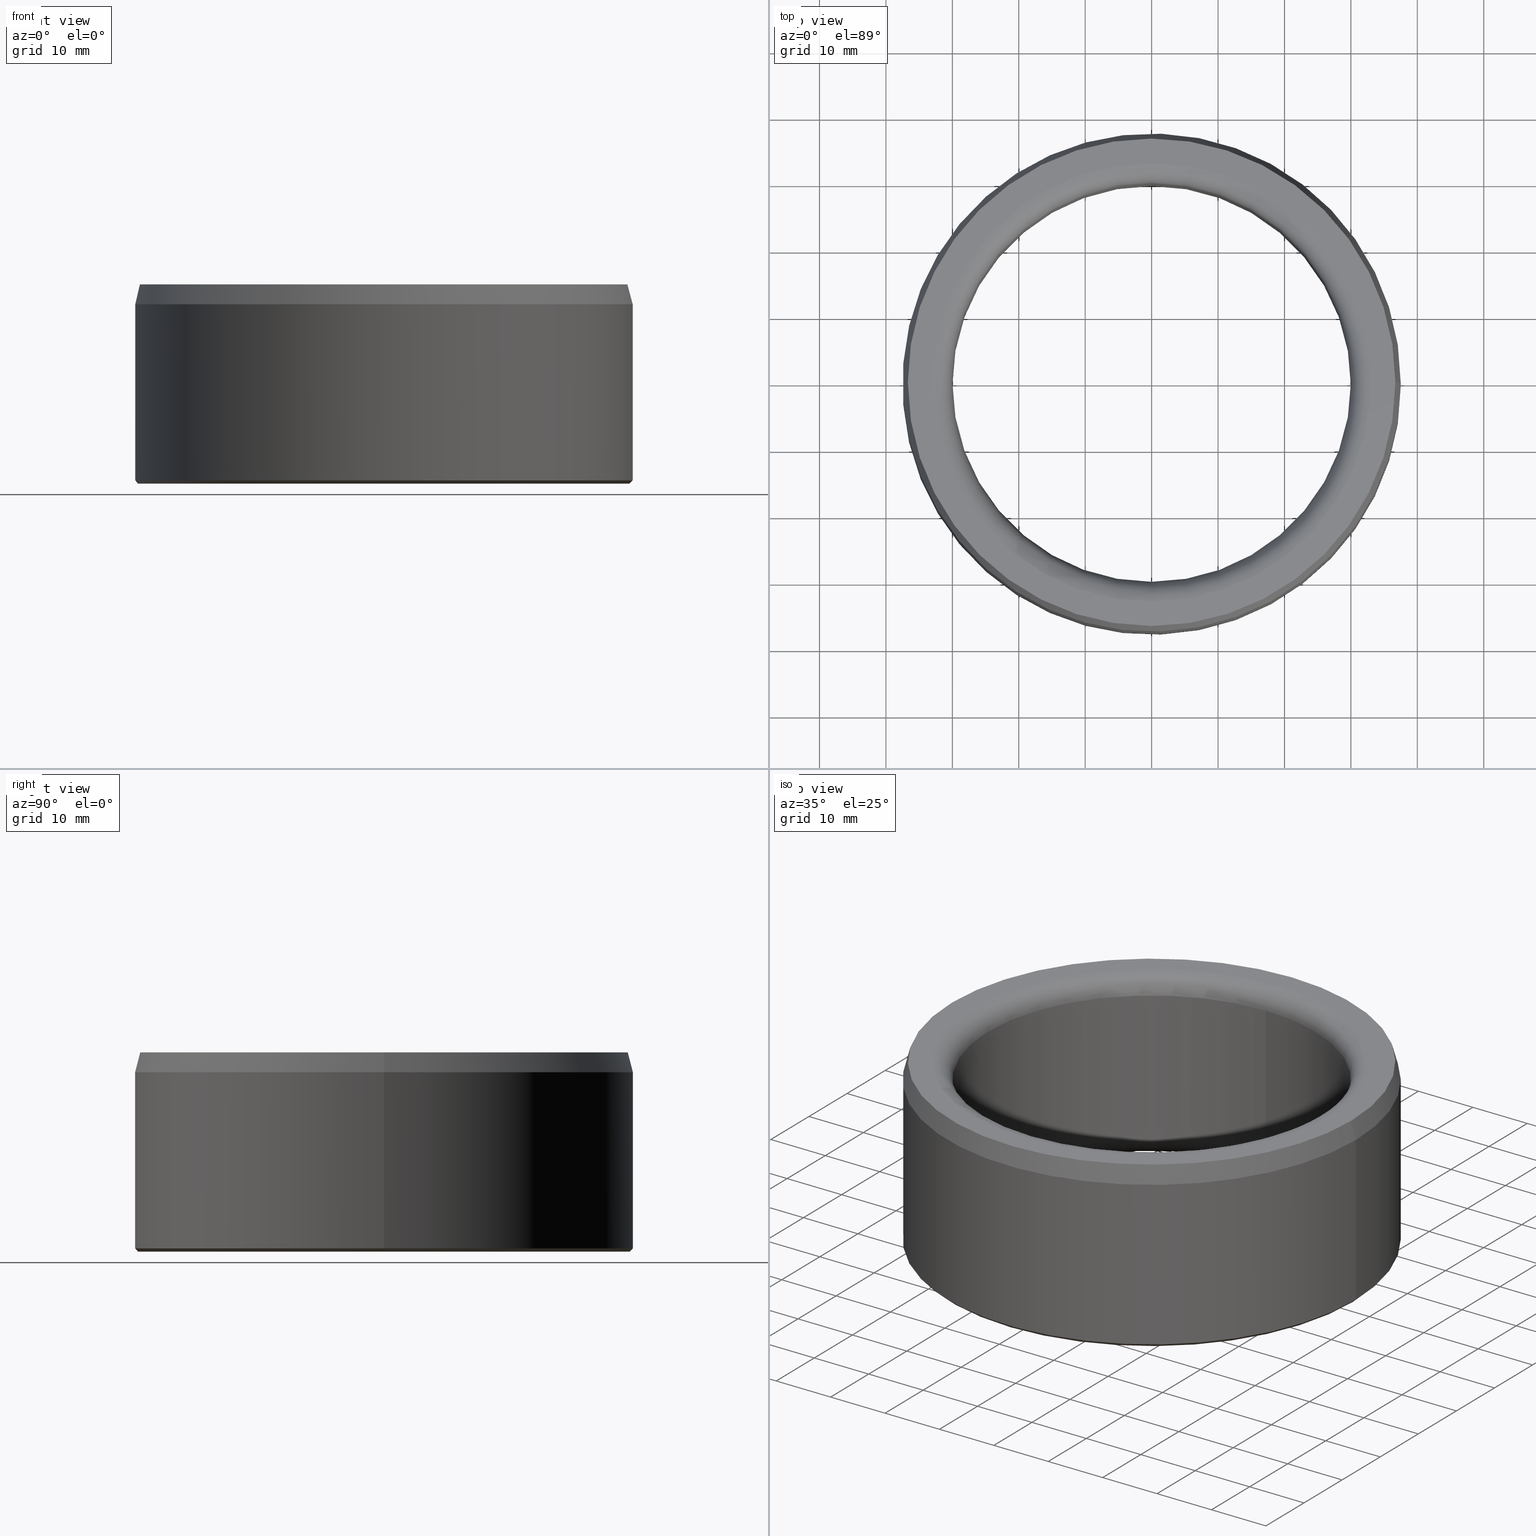
[diagram: canonical four-view strip — front | top / right | iso, engineering-drawing reading convention]
A machine part, canonical four-view strip (front | top / right | iso — engineering-drawing reading convention). The complete STEP part file that produces these views, byte-faithful:
ISO-10303-21;
HEADER;
FILE_DESCRIPTION(('STEP AP203'),'1');
FILE_NAME('620-060x75x30.stp','2018-05-21T09:26:52',(' '),(' '),'Spatial InterOp 3D',' ',' ');
FILE_SCHEMA(('CONFIG_CONTROL_DESIGN'));
ENDSEC;
DATA;
#1=DESIGN_CONTEXT('',#51,'design');
#2=APPLICATION_PROTOCOL_DEFINITION('INTERNATIONAL STANDARD','config_control_design',1994,#51);
#3=PRODUCT_CATEGORY_RELATIONSHIP('NONE','NONE',#52,#53);
#4=DATE_AND_TIME(#54,#55);
#5=DATE_TIME_ROLE('creation_date');
#6=DATE_TIME_ROLE('classification_date');
#7=PERSON_AND_ORGANIZATION_ROLE('creator');
#8=PERSON_AND_ORGANIZATION_ROLE('design_supplier');
#9=PERSON_AND_ORGANIZATION_ROLE('classification_officer');
#10=PERSON_AND_ORGANIZATION_ROLE('design_owner');
#11=APPROVAL_PERSON_ORGANIZATION(#56,#57,#58);
#12=APPROVAL_DATE_TIME(#4,#57);
#13=CC_DESIGN_APPROVAL(#57,(#59,#60,#61));
#14=CC_DESIGN_DATE_AND_TIME_ASSIGNMENT(#4,#5,(#61));
#15=CC_DESIGN_DATE_AND_TIME_ASSIGNMENT(#4,#6,(#59));
#16=CC_DESIGN_PERSON_AND_ORGANIZATION_ASSIGNMENT(#56,#10,(#62));
#17=CC_DESIGN_PERSON_AND_ORGANIZATION_ASSIGNMENT(#56,#7,(#61));
#18=CC_DESIGN_PERSON_AND_ORGANIZATION_ASSIGNMENT(#56,#7,(#60));
#19=CC_DESIGN_PERSON_AND_ORGANIZATION_ASSIGNMENT(#56,#8,(#60));
#20=CC_DESIGN_SECURITY_CLASSIFICATION(#59,(#60));
#21=CC_DESIGN_PERSON_AND_ORGANIZATION_ASSIGNMENT(#56,#9,(#59));
#22=SHAPE_DEFINITION_REPRESENTATION(#63,#64);
#23=DESIGN_CONTEXT('',#65,'design');
#24=APPLICATION_PROTOCOL_DEFINITION('INTERNATIONAL STANDARD','config_control_design',1994,#65);
#25=PRODUCT_CATEGORY_RELATIONSHIP('NONE','NONE',#66,#67);
#26=DATE_AND_TIME(#68,#69);
#27=DATE_TIME_ROLE('creation_date');
#28=DATE_TIME_ROLE('classification_date');
#29=PERSON_AND_ORGANIZATION_ROLE('creator');
#30=PERSON_AND_ORGANIZATION_ROLE('design_supplier');
#31=PERSON_AND_ORGANIZATION_ROLE('classification_officer');
#32=PERSON_AND_ORGANIZATION_ROLE('design_owner');
#33=APPROVAL_PERSON_ORGANIZATION(#70,#71,#72);
#34=APPROVAL_DATE_TIME(#26,#71);
#35=CC_DESIGN_APPROVAL(#71,(#73,#74,#75));
#36=CC_DESIGN_DATE_AND_TIME_ASSIGNMENT(#26,#27,(#75));
#37=CC_DESIGN_DATE_AND_TIME_ASSIGNMENT(#26,#28,(#73));
#38=CC_DESIGN_PERSON_AND_ORGANIZATION_ASSIGNMENT(#70,#32,(#76));
#39=CC_DESIGN_PERSON_AND_ORGANIZATION_ASSIGNMENT(#70,#29,(#75));
#40=CC_DESIGN_PERSON_AND_ORGANIZATION_ASSIGNMENT(#70,#29,(#74));
#41=CC_DESIGN_PERSON_AND_ORGANIZATION_ASSIGNMENT(#70,#30,(#74));
#42=CC_DESIGN_SECURITY_CLASSIFICATION(#73,(#74));
#43=CC_DESIGN_PERSON_AND_ORGANIZATION_ASSIGNMENT(#70,#31,(#73));
#44=CONTEXT_DEPENDENT_SHAPE_REPRESENTATION(#77,#78);
#45=SHAPE_DEFINITION_REPRESENTATION(#79,#80);
#46=SHAPE_REPRESENTATION_RELATIONSHIP('NONE','NONE',#80,#81);
#47= (GEOMETRIC_REPRESENTATION_CONTEXT(3)GLOBAL_UNCERTAINTY_ASSIGNED_CONTEXT((#84))GLOBAL_UNIT_ASSIGNED_CONTEXT((#86,#87,#88))REPRESENTATION_CONTEXT('NONE','WORKSPACE'));
#51=APPLICATION_CONTEXT('CONFIGURATION CONTROLLED 3D DESIGNS OF MECHANICAL PARTS AND ASSEMBLIES');
#52=PRODUCT_CATEGORY('part','NONE');
#53=PRODUCT_RELATED_PRODUCT_CATEGORY('detail',' ',(#62));
#54=CALENDAR_DATE(2018,21,4);
#55=LOCAL_TIME(11,26,52.0,#90);
#56=PERSON_AND_ORGANIZATION(#91,#92);
#57=APPROVAL(#93,'SOLID MODEL');
#58=APPROVAL_ROLE('APPROVED');
#59=SECURITY_CLASSIFICATION('','',#94);
#60=PRODUCT_DEFINITION_FORMATION_WITH_SPECIFIED_SOURCE(' ','NONE',#62,.NOT_KNOWN.);
#61=PRODUCT_DEFINITION('NONE','NONE',#60,#1);
#62=PRODUCT('','','PART--DESC',(#95));
#63=PRODUCT_DEFINITION_SHAPE('NONE','NONE',#61);
#64=SHAPE_REPRESENTATION('',(#96,#97),#98);
#65=APPLICATION_CONTEXT('CONFIGURATION CONTROLLED 3D DESIGNS OF MECHANICAL PARTS AND ASSEMBLIES');
#66=PRODUCT_CATEGORY('part','NONE');
#67=PRODUCT_RELATED_PRODUCT_CATEGORY('detail',' ',(#76));
#68=CALENDAR_DATE(2018,21,4);
#69=LOCAL_TIME(11,26,52.0,#99);
#70=PERSON_AND_ORGANIZATION(#100,#101);
#71=APPROVAL(#102,'SOLID MODEL');
#72=APPROVAL_ROLE('APPROVED');
#73=SECURITY_CLASSIFICATION('','',#103);
#74=PRODUCT_DEFINITION_FORMATION_WITH_SPECIFIED_SOURCE(' ','NONE',#76,.NOT_KNOWN.);
#75=PRODUCT_DEFINITION('620-060x75x30','620-060x75x30',#74,#23);
#76=PRODUCT('620-060x75x30','620-060x75x30','PART-620-060x75x30-DESC',(#104));
#77=(REPRESENTATION_RELATIONSHIP('','',#80,#64)REPRESENTATION_RELATIONSHIP_WITH_TRANSFORMATION(#107)SHAPE_REPRESENTATION_RELATIONSHIP());
#78=PRODUCT_DEFINITION_SHAPE('NAUO-PROD-DEF','NAUO-PROD-DEF',#109);
#79=PRODUCT_DEFINITION_SHAPE('NONE','NONE',#75);
#80=SHAPE_REPRESENTATION('620-060x75x30',(#96),#98);
#81=ADVANCED_BREP_SHAPE_REPRESENTATION('',(#110),#47);
#84=UNCERTAINTY_MEASURE_WITH_UNIT(LENGTH_MEASURE(1.0E-006),#86,'','');
#86= (CONVERSION_BASED_UNIT('METRE',#113)LENGTH_UNIT()NAMED_UNIT(#116));
#87= (NAMED_UNIT(#118)PLANE_ANGLE_UNIT()SI_UNIT($,.RADIAN.));
#88= (NAMED_UNIT(#118)SOLID_ANGLE_UNIT()SI_UNIT($,.STERADIAN.));
#90=COORDINATED_UNIVERSAL_TIME_OFFSET(1,0,.AHEAD.);
#91=PERSON('','UNSPECIFIED',$,$,$,$);
#92=ORGANIZATION('UNSPECIFIED','UNSPECIFIED','UNSPECIFIED');
#93=APPROVAL_STATUS('approved');
#94=SECURITY_CLASSIFICATION_LEVEL('unclassified');
#95=MECHANICAL_CONTEXT('',#51,'mechanical');
#96=AXIS2_PLACEMENT_3D('',#124,#125,#126);
#97=AXIS2_PLACEMENT_3D('',#127,#128,#129);
#98= (GEOMETRIC_REPRESENTATION_CONTEXT(3)GLOBAL_UNCERTAINTY_ASSIGNED_CONTEXT((#132))GLOBAL_UNIT_ASSIGNED_CONTEXT((#134,#135,#136))REPRESENTATION_CONTEXT('NONE','WORKSPACE'));
#99=COORDINATED_UNIVERSAL_TIME_OFFSET(1,0,.AHEAD.);
#100=PERSON('','UNSPECIFIED',$,$,$,$);
#101=ORGANIZATION('UNSPECIFIED','UNSPECIFIED','UNSPECIFIED');
#102=APPROVAL_STATUS('approved');
#103=SECURITY_CLASSIFICATION_LEVEL('unclassified');
#104=MECHANICAL_CONTEXT('',#65,'mechanical');
#107=ITEM_DEFINED_TRANSFORMATION('','',#96,#97);
#109=NEXT_ASSEMBLY_USAGE_OCCURRENCE('620-060x75x30','620-060x75x30','620-060x75x30',#61,#75,$);
#110=MANIFOLD_SOLID_BREP('',#138);
#113=LENGTH_MEASURE_WITH_UNIT(LENGTH_MEASURE(1.0),#139);
#116=DIMENSIONAL_EXPONENTS(1.0,0.0,0.0,0.0,0.0,0.0,0.0);
#118=DIMENSIONAL_EXPONENTS(0.0,0.0,0.0,0.0,0.0,0.0,0.0);
#124=CARTESIAN_POINT('',(0.0,0.0,0.0));
#125=DIRECTION('',(0.0,0.0,1.0));
#126=DIRECTION('',(1.0,0.0,0.0));
#127=CARTESIAN_POINT('',(0.0,0.0,0.0));
#128=DIRECTION('',(0.0,0.0,1.0));
#129=DIRECTION('',(1.0,0.0,0.0));
#132=UNCERTAINTY_MEASURE_WITH_UNIT(LENGTH_MEASURE(1.0E-006),#134,'','');
#134= (CONVERSION_BASED_UNIT('METRE',#142)LENGTH_UNIT()NAMED_UNIT(#145));
#135= (NAMED_UNIT(#147)PLANE_ANGLE_UNIT()SI_UNIT($,.RADIAN.));
#136= (NAMED_UNIT(#147)SOLID_ANGLE_UNIT()SI_UNIT($,.STERADIAN.));
#138=CLOSED_SHELL('',(#153,#154,#155,#156,#157,#158,#159,#160));
#139= (NAMED_UNIT(#116)LENGTH_UNIT()SI_UNIT($,.METRE.));
#142=LENGTH_MEASURE_WITH_UNIT(LENGTH_MEASURE(1.0),#162);
#145=DIMENSIONAL_EXPONENTS(1.0,0.0,0.0,0.0,0.0,0.0,0.0);
#147=DIMENSIONAL_EXPONENTS(0.0,0.0,0.0,0.0,0.0,0.0,0.0);
#153=ADVANCED_FACE('',(#163,#164),#165,.T.);
#154=ADVANCED_FACE('',(#166,#167),#168,.T.);
#155=ADVANCED_FACE('',(#169,#170),#171,.T.);
#156=ADVANCED_FACE('',(#172,#173),#174,.F.);
#157=ADVANCED_FACE('',(#175,#176),#177,.T.);
#158=ADVANCED_FACE('',(#178,#179),#180,.T.);
#159=ADVANCED_FACE('',(#181,#182),#183,.T.);
#160=ADVANCED_FACE('',(#184,#185),#186,.T.);
#162= (NAMED_UNIT(#145)LENGTH_UNIT()SI_UNIT($,.METRE.));
#163=FACE_OUTER_BOUND('',#188,.T.);
#164=FACE_OUTER_BOUND('',#189,.T.);
#165=TOROIDAL_SURFACE('',#190,0.033,0.003);
#166=FACE_BOUND('',#191,.T.);
#167=FACE_OUTER_BOUND('',#192,.T.);
#168=PLANE('',#193);
#169=FACE_OUTER_BOUND('',#194,.T.);
#170=FACE_OUTER_BOUND('',#195,.T.);
#171=TOROIDAL_SURFACE('',#196,0.033,0.003);
#172=FACE_OUTER_BOUND('',#197,.T.);
#173=FACE_OUTER_BOUND('',#198,.T.);
#174=CYLINDRICAL_SURFACE('',#199,0.03);
#175=FACE_BOUND('',#200,.T.);
#176=FACE_OUTER_BOUND('',#201,.T.);
#177=PLANE('',#202);
#178=FACE_OUTER_BOUND('',#203,.T.);
#179=FACE_BOUND('',#204,.T.);
#180=CONICAL_SURFACE('',#205,0.037,0.785398163397422);
#181=FACE_OUTER_BOUND('',#206,.T.);
#182=FACE_OUTER_BOUND('',#207,.T.);
#183=CYLINDRICAL_SURFACE('',#208,0.0375);
#184=FACE_BOUND('',#209,.T.);
#185=FACE_OUTER_BOUND('',#210,.T.);
#186=CONICAL_SURFACE('',#211,0.0375,0.261799387799152);
#188=EDGE_LOOP('',(#212));
#189=EDGE_LOOP('',(#213));
#190=AXIS2_PLACEMENT_3D('',#214,#215,#216);
#191=EDGE_LOOP('',(#217));
#192=EDGE_LOOP('',(#218));
#193=AXIS2_PLACEMENT_3D('',#219,#220,#221);
#194=EDGE_LOOP('',(#222));
#195=EDGE_LOOP('',(#223));
#196=AXIS2_PLACEMENT_3D('',#224,#225,#226);
#197=EDGE_LOOP('',(#227));
#198=EDGE_LOOP('',(#228));
#199=AXIS2_PLACEMENT_3D('',#229,#230,#231);
#200=EDGE_LOOP('',(#232));
#201=EDGE_LOOP('',(#233));
#202=AXIS2_PLACEMENT_3D('',#234,#235,#236);
#203=EDGE_LOOP('',(#237));
#204=EDGE_LOOP('',(#238));
#205=AXIS2_PLACEMENT_3D('',#239,#240,#241);
#206=EDGE_LOOP('',(#242));
#207=EDGE_LOOP('',(#243));
#208=AXIS2_PLACEMENT_3D('',#244,#245,#246);
#209=EDGE_LOOP('',(#247));
#210=EDGE_LOOP('',(#248));
#211=AXIS2_PLACEMENT_3D('',#249,#250,#251);
#212=ORIENTED_EDGE('',*,*,#252,.F.);
#213=ORIENTED_EDGE('',*,*,#253,.F.);
#214=CARTESIAN_POINT('',(0.0,1.83697019872103E-019,0.003));
#215=DIRECTION('',(0.0,-6.12323399573677E-017,-1.0));
#216=DIRECTION('',(0.0,1.0,-6.12323399573677E-017));
#217=ORIENTED_EDGE('',*,*,#254,.T.);
#218=ORIENTED_EDGE('',*,*,#255,.F.);
#219=CARTESIAN_POINT('',(0.0366961524227066,1.73472347597681E-018,0.03));
#220=DIRECTION('',(0.0,6.12323399573677E-017,1.0));
#221=DIRECTION('',(0.0,-1.0,6.12323399573677E-017));
#222=ORIENTED_EDGE('',*,*,#256,.F.);
#223=ORIENTED_EDGE('',*,*,#254,.F.);
#224=CARTESIAN_POINT('',(0.0,1.65327317884893E-018,0.027));
#225=DIRECTION('',(0.0,6.12323399573677E-017,1.0));
#226=DIRECTION('',(0.0,-1.0,6.12323399573677E-017));
#227=ORIENTED_EDGE('',*,*,#253,.T.);
#228=ORIENTED_EDGE('',*,*,#256,.T.);
#229=CARTESIAN_POINT('',(0.0,0.0,0.0));
#230=DIRECTION('',(0.0,-6.12323399573677E-017,-1.0));
#231=DIRECTION('',(0.0,1.0,-6.12323399573677E-017));
#232=ORIENTED_EDGE('',*,*,#252,.T.);
#233=ORIENTED_EDGE('',*,*,#257,.T.);
#234=CARTESIAN_POINT('',(0.03,0.0,4.28626379701574E-019));
#235=DIRECTION('',(0.0,-6.12323399573677E-017,-1.0));
#236=DIRECTION('',(0.0,1.0,-6.12323399573677E-017));
#237=ORIENTED_EDGE('',*,*,#258,.T.);
#238=ORIENTED_EDGE('',*,*,#257,.F.);
#239=CARTESIAN_POINT('',(0.0,0.0,8.57252759403147E-019));
#240=DIRECTION('',(-0.0,6.12323399573677E-017,1.0));
#241=DIRECTION('',(0.0,-1.0,6.12323399573677E-017));
#242=ORIENTED_EDGE('',*,*,#259,.T.);
#243=ORIENTED_EDGE('',*,*,#258,.F.);
#244=CARTESIAN_POINT('',(0.0,0.0,0.0));
#245=DIRECTION('',(0.0,-6.12323399573677E-017,-1.0));
#246=DIRECTION('',(0.0,1.0,-6.12323399573677E-017));
#247=ORIENTED_EDGE('',*,*,#255,.T.);
#248=ORIENTED_EDGE('',*,*,#259,.F.);
#249=CARTESIAN_POINT('',(0.0,1.73472347597681E-018,0.027));
#250=DIRECTION('',(0.0,-6.12323399573677E-017,-1.0));
#251=DIRECTION('',(0.0,1.0,-6.12323399573677E-017));
#252=EDGE_CURVE('',#260,#260,#261,.F.);
#253=EDGE_CURVE('',#262,#262,#263,.T.);
#254=EDGE_CURVE('',#264,#264,#265,.F.);
#255=EDGE_CURVE('',#266,#266,#267,.T.);
#256=EDGE_CURVE('',#268,#268,#269,.T.);
#257=EDGE_CURVE('',#270,#270,#271,.T.);
#258=EDGE_CURVE('',#272,#272,#273,.T.);
#259=EDGE_CURVE('',#274,#274,#275,.T.);
#260=VERTEX_POINT('',#276);
#261=CIRCLE('',#277,0.033);
#262=VERTEX_POINT('',#278);
#263=CIRCLE('',#279,0.03);
#264=VERTEX_POINT('',#280);
#265=CIRCLE('',#281,0.033);
#266=VERTEX_POINT('',#282);
#267=CIRCLE('',#283,0.0366961524227066);
#268=VERTEX_POINT('',#284);
#269=CIRCLE('',#285,0.03);
#270=VERTEX_POINT('',#286);
#271=CIRCLE('',#287,0.037);
#272=VERTEX_POINT('',#288);
#273=CIRCLE('',#289,0.0375);
#274=VERTEX_POINT('',#290);
#275=CIRCLE('',#291,0.0375);
#276=CARTESIAN_POINT('',(0.0,0.033,-1.58698634959893E-018));
#277=AXIS2_PLACEMENT_3D('',#292,#293,#294);
#278=CARTESIAN_POINT('',(0.0,0.03,0.003));
#279=AXIS2_PLACEMENT_3D('',#295,#296,#297);
#280=CARTESIAN_POINT('',(0.0,-0.033,0.03));
#281=AXIS2_PLACEMENT_3D('',#298,#299,#300);
#282=CARTESIAN_POINT('',(0.0366961524227066,1.73472347597681E-018,0.03));
#283=AXIS2_PLACEMENT_3D('',#301,#302,#303);
#284=CARTESIAN_POINT('',(0.0,-0.03,0.027));
#285=AXIS2_PLACEMENT_3D('',#304,#305,#306);
#286=CARTESIAN_POINT('',(0.037,0.0,8.57252759403147E-019));
#287=AXIS2_PLACEMENT_3D('',#307,#308,#309);
#288=CARTESIAN_POINT('',(0.0375,0.0,0.0005));
#289=AXIS2_PLACEMENT_3D('',#310,#311,#312);
#290=CARTESIAN_POINT('',(0.0375,1.73472347597681E-018,0.027));
#291=AXIS2_PLACEMENT_3D('',#313,#314,#315);
#292=CARTESIAN_POINT('',(0.0,2.40741243048404E-035,4.33680868994202E-019));
#293=DIRECTION('',(0.0,-6.12323399573677E-017,-1.0));
#294=DIRECTION('',(0.0,1.0,-6.12323399573677E-017));
#295=CARTESIAN_POINT('',(0.0,1.83697019872103E-019,0.003));
#296=DIRECTION('',(0.0,-6.12323399573677E-017,-1.0));
#297=DIRECTION('',(0.0,1.0,-6.12323399573677E-017));
#298=CARTESIAN_POINT('',(0.0,1.83697019872103E-018,0.03));
#299=DIRECTION('',(0.0,6.12323399573677E-017,1.0));
#300=DIRECTION('',(0.0,-1.0,6.12323399573677E-017));
#301=CARTESIAN_POINT('',(0.0,1.73472347597681E-018,0.03));
#302=DIRECTION('',(0.0,-6.12323399573677E-017,-1.0));
#303=DIRECTION('',(0.0,1.0,-6.12323399573677E-017));
#304=CARTESIAN_POINT('',(0.0,1.65327317884893E-018,0.027));
#305=DIRECTION('',(0.0,6.12323399573677E-017,1.0));
#306=DIRECTION('',(0.0,-1.0,6.12323399573677E-017));
#307=CARTESIAN_POINT('',(0.0,0.0,8.57252759403147E-019));
#308=DIRECTION('',(0.0,-6.12323399573677E-017,-1.0));
#309=DIRECTION('',(0.0,1.0,-6.12323399573677E-017));
#310=CARTESIAN_POINT('',(0.0,0.0,0.0005));
#311=DIRECTION('',(0.0,-6.12323399573677E-017,-1.0));
#312=DIRECTION('',(0.0,1.0,-6.12323399573677E-017));
#313=CARTESIAN_POINT('',(0.0,1.73472347597681E-018,0.027));
#314=DIRECTION('',(0.0,-6.12323399573677E-017,-1.0));
#315=DIRECTION('',(0.0,1.0,-6.12323399573677E-017));
ENDSEC;
END-ISO-10303-21;
